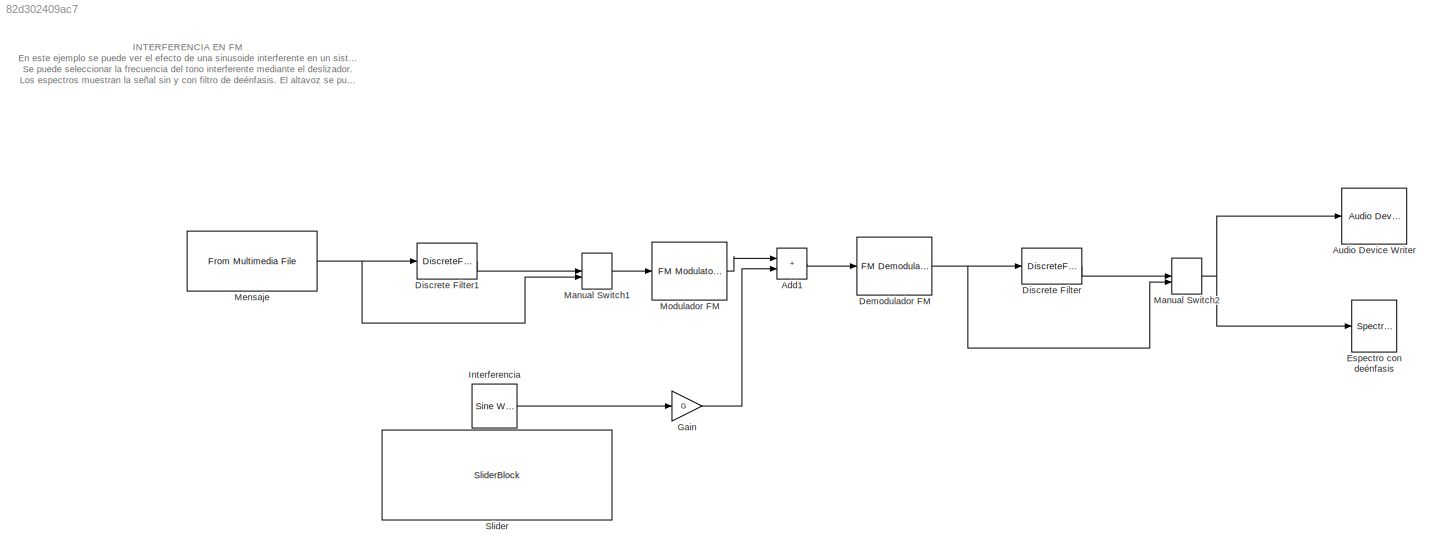
MODEL slx_82d302409ac7
KIND model
CONFIG AbsTol = auto
CONFIG EnableMultiTasking = off
CONFIG FixedStep = auto
CONFIG MaxStep = auto
CONFIG MinStep = auto
CONFIG RelTol = 1e-3
CONFIG SampleTimeConstraint = Unconstrained
CONFIG SolverName = VariableStepAuto
CONFIG StartTime = 0.0
CONFIG StopTime = Inf
WORKSPACE source: mxarray member
WORKSPACE G = 0.0005
WORKSPACE fd = 75
WORKSPACE fs = 22050
BLOCK [Sum] Add1
  IconShape = rectangular
  Ports = [2, 1]
BLOCK [Reference] Audio Device Writer  REF=dspsnks4/Audio Device
Writer
  Ports = [1]
  SourceBlock = dspsnks4/Audio Device\nWriter
  SourceProductBaseCode = DS
  SourceType = Audio Device Writer
BLOCK [Reference] Demodulador FM  REF=commanabbnd3/FM
Demodulator
Baseband 
  Ports = [1, 1]
  SourceBlock = commanabbnd3/FM\nDemodulator\nBaseband
  SourceProductBaseCode = CM
  SourceType = FM Demodulator Baseband
BLOCK [DiscreteFilter] Discrete Filter
  Denominator = [1.0000   -0.6135]
  InputPortMap = u0
  InputProcessing = Columns as channels (frame based)
  Numerator = [0.1932 0.1932]
  Ports = [1, 1]
BLOCK [DiscreteFilter] Discrete Filter1
  Denominator = [0.1932 0.1932]
  InputPortMap = u0
  InputProcessing = Columns as channels (frame based)
  Numerator = [1.0000   -0.6135]
  Ports = [1, 1]
BLOCK [SpectrumAnalyzer] Espectro con deénfasis
  Ports = [1]
  ScopeSpecificationString = spbscopes.SpectrumAnalyzerBlockCfg('CurrentConfiguration', extmgr.ConfigurationSet(extmgr.Configuration('Core','General UI',true),extmgr.Configuration('Core','Source UI',true),extmgr.Configuration('Sources','WiredSimulink',true),extmgr.Configuration('Sources','SimulinkEvent',false),extmgr.Configuration('Sources','Simulink',false),extmgr.Configuration('Sources','File',false),extmgr.Configuration('S...<+3686ch>
BLOCK [Gain] Gain
  Gain = G
BLOCK [Reference] Interferencia  REF=dspsrcs4/Sine Wave
  Ports = [0, 1]
  SourceBlock = dspsrcs4/Sine Wave
  SourceProductBaseCode = DS
  SourceType = Sine Wave
BLOCK [ManualSwitch] Manual Switch1
BLOCK [ManualSwitch] Manual Switch2
BLOCK [Reference] Mensaje  REF=dspvision/From Multimedia File
  Ports = [0, 1]
  SourceBlock = dspvision/From Multimedia File
  SourceProductBaseCode = DS,HW,VP
  SourceType = From Multimedia File
BLOCK [Reference] Modulador FM  REF=commanabbnd3/FM
Modulator
Baseband
  Ports = [1, 1]
  SourceBlock = commanabbnd3/FM\nModulator\nBaseband
  SourceProductBaseCode = CM
  SourceType = FM Modulator Baseband
BLOCK [SliderBlock] Slider
  LabelPosition = Bottom
  ScaleMax = 10000
  TickInterval = 2000
ANNOTATION (root): INTERFERENCIA EN FM En este ejemplo se puede ver el efecto de una sinusoide interferente en un sistema FM. Se puede seleccionar la frecuencia del tono interferente mediante el deslizador. Los espectros muestran la señal sin y con filtro de deénfasis. El altavoz se puede seleccionar para escuchar la salida en cada uno de los casos.
LINE Add1:1 -> Demodulador FM:1
NET Demodulador FM:1 -> Discrete Filter:1, Manual Switch2:2
LINE Discrete Filter1:1 -> Manual Switch1:1
LINE Discrete Filter:1 -> Manual Switch2:1
LINE Gain:1 -> Add1:2
LINE Interferencia:1 -> Gain:1
LINE Manual Switch1:1 -> Modulador FM:1
NET Manual Switch2:1 -> Audio Device Writer:1, Espectro con deénfasis:1
NET Mensaje:1 -> Discrete Filter1:1, Manual Switch1:2
LINE Modulador FM:1 -> Add1:1
note: NET lines group one-source signal fan-out (src -> all destinations, sorted); 1:1 wires keep LINE
